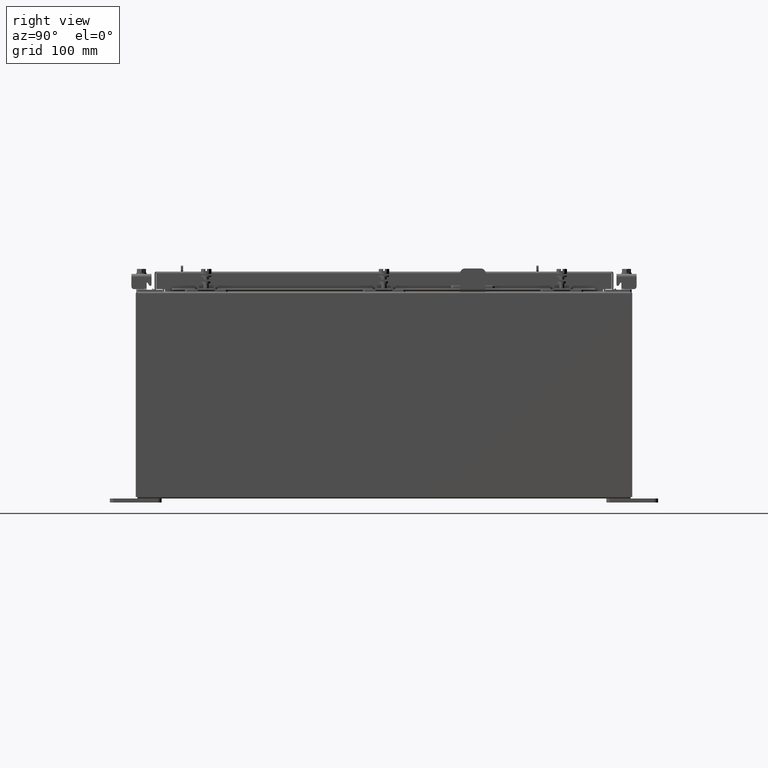
[diagram: clean part render]
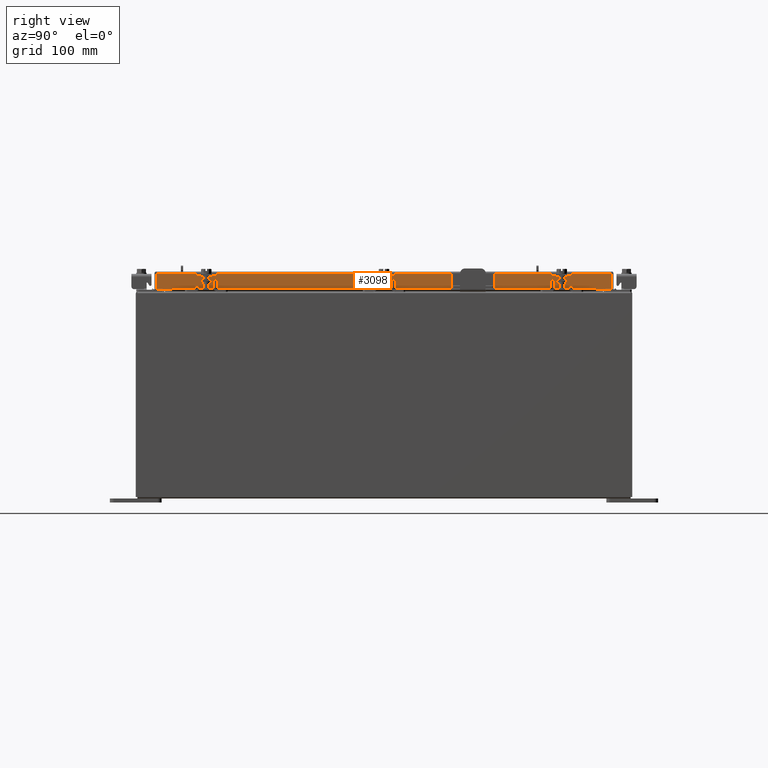
[diagram: same view with one face highlighted and labeled with its STEP entity id]
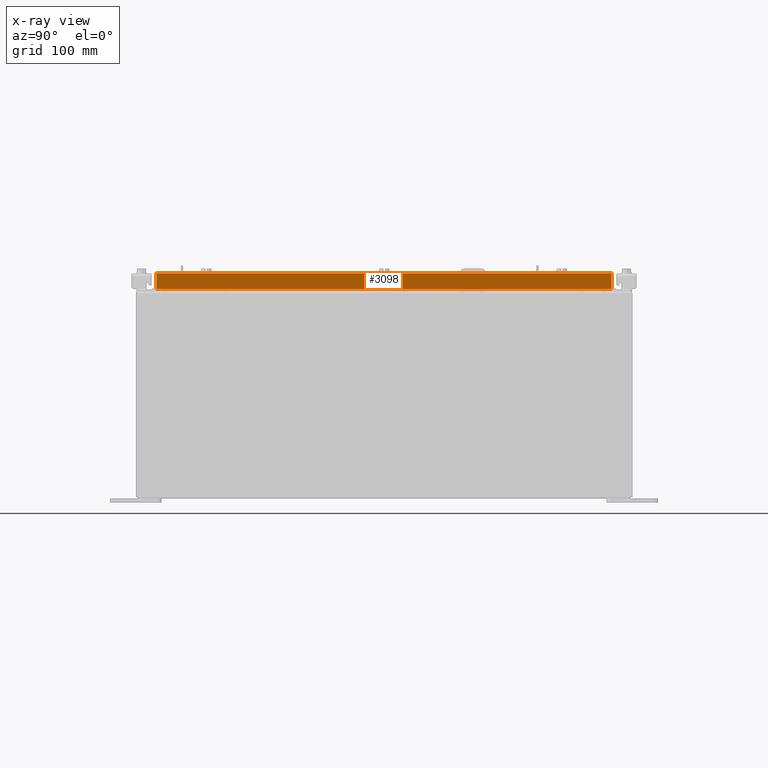
[diagram: x-ray of the same camera — body ghosted, the highlighted face saturated]
A machine part, right view. The second image highlights one B-rep face of the part: STEP entity #3098.
The next image is the same camera in x-ray: the body ghosted, the highlighted face saturated — about 0% of this face is hidden behind the body in this view.
In plain terms, the highlighted planar face has unit normal (1, 0, 0).
Its self-contained STEP definition (entity closure, byte-faithful):
#41 = DIRECTION ( 'NONE',  ( -2.818880942772360100E-015, -6.982962677686267500E-015, 1.000000000000000000 ) ) ;
#411 = EDGE_LOOP ( 'NONE', ( #1504, #15430, #18532, #20563, #1515, #9385 ) ) ;
#926 = CARTESIAN_POINT ( 'NONE',  ( 9.093999999999995900, 10.25515786437627200, -0.8499999999999999800 ) ) ;
#979 = DIRECTION ( 'NONE',  ( 0.0000000000000000000, -1.000000000000000000, 0.0000000000000000000 ) ) ;
#1504 = ORIENTED_EDGE ( 'NONE', *, *, #20348, .F. ) ;
#1515 = ORIENTED_EDGE ( 'NONE', *, *, #8232, .T. ) ;
#2285 = DIRECTION ( 'NONE',  ( -2.818880942772360100E-015, -6.982962677686267500E-015, 1.000000000000000000 ) ) ;
#2418 = VECTOR ( 'NONE', #3172, 39.37007874015748100 ) ;
#2748 = CARTESIAN_POINT ( 'NONE',  ( 9.093999999999997600, 0.0000000000000000000, 2.622574073917692700E-014 ) ) ;
#3098 = ADVANCED_FACE ( 'NONE', ( #8558 ), #6300, .T. ) ;
#3172 = DIRECTION ( 'NONE',  ( 0.0000000000000000000, -1.000000000000000000, 0.0000000000000000000 ) ) ;
#3408 = CARTESIAN_POINT ( 'NONE',  ( 9.093999999999997600, -11.00515786437626400, -0.08770000000000026400 ) ) ;
#4054 = CARTESIAN_POINT ( 'NONE',  ( 9.093999999999997600, 11.00515786437627100, 1.027174845617763000E-013 ) ) ;
#4728 = VERTEX_POINT ( 'NONE', #3408 ) ;
#5176 = EDGE_CURVE ( 'NONE', #21932, #5252, #17986, .T. ) ;
#5252 = VERTEX_POINT ( 'NONE', #20718 ) ;
#5969 = VECTOR ( 'NONE', #2285, 39.37007874015748100 ) ;
#6300 = PLANE ( 'NONE',  #11972 ) ;
#6446 = VERTEX_POINT ( 'NONE', #20699 ) ;
#6453 = VECTOR ( 'NONE', #41, 39.37007874015748100 ) ;
#7503 = EDGE_CURVE ( 'NONE', #6446, #8266, #9268, .T. ) ;
#8058 = DIRECTION ( 'NONE',  ( 2.818880942772360100E-015, 0.0000000000000000000, -1.000000000000000000 ) ) ;
#8099 = VECTOR ( 'NONE', #11354, 39.37007874015748100 ) ;
#8232 = EDGE_CURVE ( 'NONE', #21932, #18240, #15798, .T. ) ;
#8266 = VERTEX_POINT ( 'NONE', #16337 ) ;
#8558 = FACE_OUTER_BOUND ( 'NONE', #411, .T. ) ;
#9268 = LINE ( 'NONE', #20125, #22044 ) ;
#9385 = ORIENTED_EDGE ( 'NONE', *, *, #11663, .T. ) ;
#9530 = CARTESIAN_POINT ( 'NONE',  ( 9.093999999999999400, 11.00515786437627800, -0.8499999999999999800 ) ) ;
#9970 = VECTOR ( 'NONE', #14884, 39.37007874015748100 ) ;
#10528 = LINE ( 'NONE', #21803, #8099 ) ;
#11354 = DIRECTION ( 'NONE',  ( 0.0000000000000000000, -1.000000000000000000, 0.0000000000000000000 ) ) ;
#11663 = EDGE_CURVE ( 'NONE', #18240, #4728, #10528, .T. ) ;
#11690 = EDGE_CURVE ( 'NONE', #5252, #6446, #14606, .T. ) ;
#11972 = AXIS2_PLACEMENT_3D ( 'NONE', #2748, #18479, #8058 ) ;
#14606 = LINE ( 'NONE', #926, #9970 ) ;
#14884 = DIRECTION ( 'NONE',  ( 0.0000000000000000000, -1.000000000000000000, 0.0000000000000000000 ) ) ;
#15430 = ORIENTED_EDGE ( 'NONE', *, *, #7503, .F. ) ;
#15729 = LINE ( 'NONE', #20938, #6453 ) ;
#15798 = LINE ( 'NONE', #4054, #5969 ) ;
#16337 = CARTESIAN_POINT ( 'NONE',  ( 9.093999999999999400, -11.00515786437626000, -0.8499999999999999800 ) ) ;
#17986 = LINE ( 'NONE', #22300, #2418 ) ;
#18240 = VERTEX_POINT ( 'NONE', #18726 ) ;
#18479 = DIRECTION ( 'NONE',  ( 1.000000000000000000, 0.0000000000000000000, 2.818880942772360100E-015 ) ) ;
#18532 = ORIENTED_EDGE ( 'NONE', *, *, #11690, .F. ) ;
#18726 = CARTESIAN_POINT ( 'NONE',  ( 9.093999999999997600, 11.00515786437627200, -0.08770000000000026400 ) ) ;
#20125 = CARTESIAN_POINT ( 'NONE',  ( 9.093999999999999400, -11.09399999999999900, -0.8499999999999999800 ) ) ;
#20348 = EDGE_CURVE ( 'NONE', #8266, #4728, #15729, .T. ) ;
#20563 = ORIENTED_EDGE ( 'NONE', *, *, #5176, .F. ) ;
#20699 = CARTESIAN_POINT ( 'NONE',  ( 9.093999999999995900, -10.25515786437626400, -0.8499999999999999800 ) ) ;
#20718 = CARTESIAN_POINT ( 'NONE',  ( 9.093999999999995900, 10.25515786437627200, -0.8499999999999999800 ) ) ;
#20938 = CARTESIAN_POINT ( 'NONE',  ( 9.093999999999997600, -11.00515786437626400, -0.07470000000000015500 ) ) ;
#21803 = CARTESIAN_POINT ( 'NONE',  ( 9.093999999999997600, 0.0000000000000000000, -0.08770000000000026400 ) ) ;
#21932 = VERTEX_POINT ( 'NONE', #9530 ) ;
#22044 = VECTOR ( 'NONE', #979, 39.37007874015748100 ) ;
#22300 = CARTESIAN_POINT ( 'NONE',  ( 9.093999999999999400, -11.09399999999999900, -0.8499999999999999800 ) ) ;